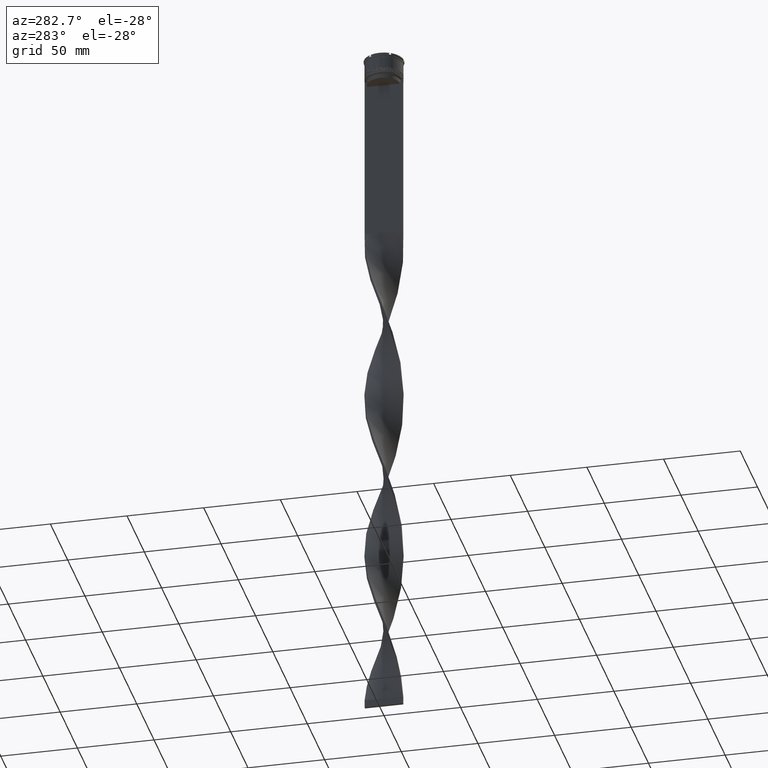
[diagram: clean part render]
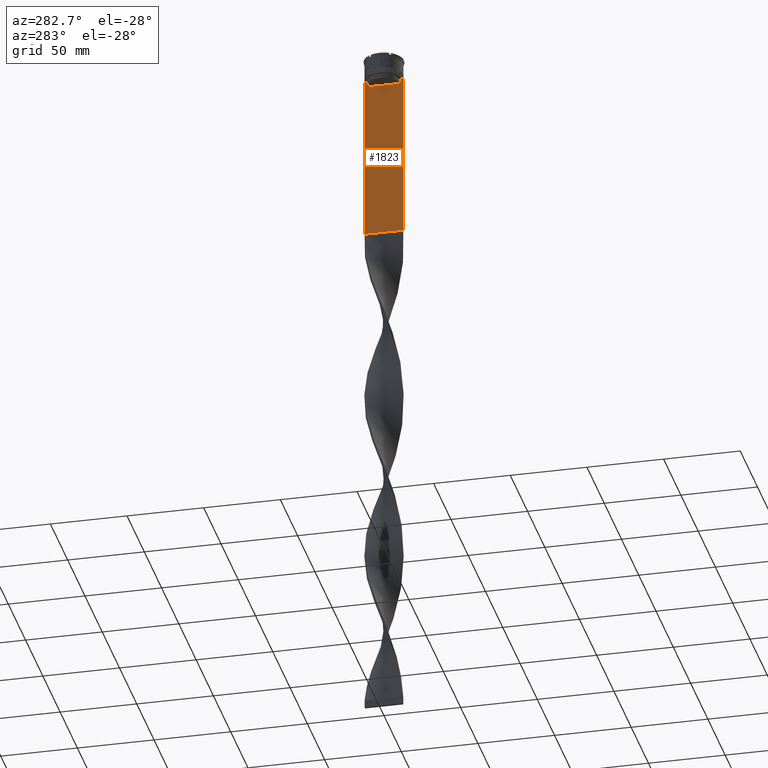
[diagram: same view with one face highlighted and labeled with its STEP entity id]
A machine part, auxiliary view. The second image highlights one B-rep face of the part: STEP entity #1823.
In plain terms, the highlighted planar face has unit normal (-1, 0, 0).
Its self-contained STEP definition (entity closure, byte-faithful):
#14 = CARTESIAN_POINT ( 'NONE',  ( -0.7499999999999997780, 11.04122051153452055, -14.33334204648729582 ) ) ;
#53 = DIRECTION ( 'NONE',  ( 0.000000000000000000, 0.000000000000000000, -1.000000000000000000 ) ) ;
#119 = CARTESIAN_POINT ( 'NONE',  ( -0.7499999999999997780, -11.37530219378809093, -14.00000000000000178 ) ) ;
#144 = PLANE ( 'NONE',  #4555 ) ;
#151 = DIRECTION ( 'NONE',  ( 0.000000000000000000, 0.000000000000000000, -1.000000000000000000 ) ) ;
#157 = ORIENTED_EDGE ( 'NONE', *, *, #1372, .F. ) ;
#172 = CARTESIAN_POINT ( 'NONE',  ( -0.7499999999999997780, 10.87416663473574374, 0.000000000000000000 ) ) ;
#187 = VERTEX_POINT ( 'NONE', #1264 ) ;
#191 = LINE ( 'NONE', #1275, #3712 ) ;
#206 = DIRECTION ( 'NONE',  ( 0.000000000000000000, 1.000000000000000000, 0.000000000000000000 ) ) ;
#270 = CARTESIAN_POINT ( 'NONE',  ( -0.7499999999999997780, 11.37530219378809093, -14.00000000000000178 ) ) ;
#320 = DIRECTION ( 'NONE',  ( 0.000000000000000000, 0.000000000000000000, -1.000000000000000000 ) ) ;
#354 = VECTOR ( 'NONE', #4526, 1000.000000000000000 ) ;
#362 = CARTESIAN_POINT ( 'NONE',  ( -0.7499999999999997780, -12.50000000000000000, -14.00000000000000178 ) ) ;
#371 = CARTESIAN_POINT ( 'NONE',  ( -0.7499999999999997780, 11.37530219378809093, -14.00000000000000178 ) ) ;
#408 = ORIENTED_EDGE ( 'NONE', *, *, #2575, .T. ) ;
#428 = VECTOR ( 'NONE', #3726, 1000.000000000000000 ) ;
#435 = VECTOR ( 'NONE', #320, 1000.000000000000000 ) ;
#476 = VERTEX_POINT ( 'NONE', #2940 ) ;
#517 = LINE ( 'NONE', #3992, #4251 ) ;
#528 = DIRECTION ( 'NONE',  ( 0.000000000000000000, -1.000000000000000000, 0.000000000000000000 ) ) ;
#564 = VECTOR ( 'NONE', #528, 1000.000000000000000 ) ;
#620 = CARTESIAN_POINT ( 'NONE',  ( -0.7499999999999997780, -12.37729776647553059, -14.00000000000000178 ) ) ;
#638 = EDGE_CURVE ( 'NONE', #1933, #2484, #978, .T. ) ;
#640 = CARTESIAN_POINT ( 'NONE',  ( -0.7499999999999997780, -11.37530219378809093, -14.00000000000000178 ) ) ;
#644 = CARTESIAN_POINT ( 'NONE',  ( -0.7499999999999997780, 12.50000000000000000, -123.0000000000000000 ) ) ;
#676 = CARTESIAN_POINT ( 'NONE',  ( -0.7499999999999997780, -12.50000000000000000, 11.04495957273638673 ) ) ;
#758 = LINE ( 'NONE', #775, #3499 ) ;
#775 = CARTESIAN_POINT ( 'NONE',  ( -0.7499999999999997780, 12.50000000000000000, 11.04495957273638673 ) ) ;
#857 = ORIENTED_EDGE ( 'NONE', *, *, #3722, .F. ) ;
#907 = VERTEX_POINT ( 'NONE', #4550 ) ;
#978 = LINE ( 'NONE', #2411, #564 ) ;
#1003 = CARTESIAN_POINT ( 'NONE',  ( -0.7499999999999997780, -12.50000000000000000, -123.0000000000000000 ) ) ;
#1014 = B_SPLINE_CURVE_WITH_KNOTS ( 'NONE', 3,
 ( #371, #3222, #14, #1447 ),
 .UNSPECIFIED., .F., .F.,
 ( 4, 4 ),
 ( 0.01936090553552769281, 0.02006881572333104116 ),
 .UNSPECIFIED. ) ;
#1123 = DIRECTION ( 'NONE',  ( -1.000000000000000000, 0.000000000000000000, 0.000000000000000000 ) ) ;
#1167 = VECTOR ( 'NONE', #2660, 1000.000000000000000 ) ;
#1220 = EDGE_CURVE ( 'NONE', #187, #4585, #4224, .T. ) ;
#1246 = DIRECTION ( 'NONE',  ( 0.000000000000000000, -1.000000000000000000, 0.000000000000000000 ) ) ;
#1260 = VERTEX_POINT ( 'NONE', #3724 ) ;
#1264 = CARTESIAN_POINT ( 'NONE',  ( -0.7499999999999997780, -12.50000000000000000, -123.0000000000000000 ) ) ;
#1275 = CARTESIAN_POINT ( 'NONE',  ( -0.7499999999999997780, -12.50000000000000000, -14.00000000000000178 ) ) ;
#1372 = EDGE_CURVE ( 'NONE', #2186, #2410, #191, .T. ) ;
#1447 = CARTESIAN_POINT ( 'NONE',  ( -0.7499999999999997780, 10.87416663473574374, -14.50000000000000000 ) ) ;
#1493 = ORIENTED_EDGE ( 'NONE', *, *, #3850, .F. ) ;
#1510 = VERTEX_POINT ( 'NONE', #3952 ) ;
#1567 = FACE_OUTER_BOUND ( 'NONE', #4513, .T. ) ;
#1662 = EDGE_CURVE ( 'NONE', #1260, #1510, #517, .T. ) ;
#1675 = LINE ( 'NONE', #2390, #354 ) ;
#1725 = EDGE_CURVE ( 'NONE', #476, #3541, #1983, .T. ) ;
#1753 = ORIENTED_EDGE ( 'NONE', *, *, #1662, .F. ) ;
#1767 = VERTEX_POINT ( 'NONE', #3679 ) ;
#1823 = ADVANCED_FACE ( 'NONE', ( #1567 ), #144, .T. ) ;
#1891 = DIRECTION ( 'NONE',  ( 0.000000000000000000, 0.000000000000000000, 1.000000000000000000 ) ) ;
#1933 = VERTEX_POINT ( 'NONE', #620 ) ;
#1944 = DIRECTION ( 'NONE',  ( 0.000000000000000000, -1.000000000000000000, 0.000000000000000000 ) ) ;
#1983 = B_SPLINE_CURVE_WITH_KNOTS ( 'NONE', 3,
 ( #2612, #3303, #3321, #119 ),
 .UNSPECIFIED., .F., .F.,
 ( 4, 4 ),
 ( 0.05009718908159448147, 0.05081156920313960323 ),
 .UNSPECIFIED. ) ;
#2054 = LINE ( 'NONE', #172, #4256 ) ;
#2149 = EDGE_CURVE ( 'NONE', #907, #2186, #3004, .T. ) ;
#2186 = VERTEX_POINT ( 'NONE', #3740 ) ;
#2390 = CARTESIAN_POINT ( 'NONE',  ( -0.7499999999999997780, -12.50000000000000000, -14.00000000000000178 ) ) ;
#2410 = VERTEX_POINT ( 'NONE', #270 ) ;
#2411 = CARTESIAN_POINT ( 'NONE',  ( -0.7499999999999997780, -12.50000000000000000, -14.00000000000000178 ) ) ;
#2484 = VERTEX_POINT ( 'NONE', #362 ) ;
#2575 = EDGE_CURVE ( 'NONE', #907, #4585, #758, .T. ) ;
#2612 = CARTESIAN_POINT ( 'NONE',  ( -0.7499999999999997780, -10.87416663473574374, -14.50000000000000000 ) ) ;
#2660 = DIRECTION ( 'NONE',  ( 0.000000000000000000, -1.000000000000000000, 0.000000000000000000 ) ) ;
#2812 = ORIENTED_EDGE ( 'NONE', *, *, #4533, .F. ) ;
#2940 = CARTESIAN_POINT ( 'NONE',  ( -0.7499999999999997780, -10.87416663473574374, -14.50000000000000000 ) ) ;
#2948 = EDGE_CURVE ( 'NONE', #1510, #476, #3347, .T. ) ;
#2992 = ORIENTED_EDGE ( 'NONE', *, *, #1220, .F. ) ;
#3004 = LINE ( 'NONE', #3330, #1167 ) ;
#3088 = ORIENTED_EDGE ( 'NONE', *, *, #4510, .F. ) ;
#3167 = ORIENTED_EDGE ( 'NONE', *, *, #638, .F. ) ;
#3184 = VECTOR ( 'NONE', #206, 1000.000000000000000 ) ;
#3222 = CARTESIAN_POINT ( 'NONE',  ( -0.7499999999999997780, 11.20826531587977648, -14.16667499681701514 ) ) ;
#3303 = CARTESIAN_POINT ( 'NONE',  ( -0.7499999999999997780, -11.04122051801870619, -14.33334204001847745 ) ) ;
#3321 = CARTESIAN_POINT ( 'NONE',  ( -0.7499999999999997780, -11.20826532207830439, -14.16667499063191471 ) ) ;
#3330 = CARTESIAN_POINT ( 'NONE',  ( -0.7499999999999997780, -12.50000000000000000, -14.00000000000000178 ) ) ;
#3347 = LINE ( 'NONE', #4344, #428 ) ;
#3422 = ORIENTED_EDGE ( 'NONE', *, *, #2149, .F. ) ;
#3499 = VECTOR ( 'NONE', #53, 1000.000000000000000 ) ;
#3541 = VERTEX_POINT ( 'NONE', #640 ) ;
#3679 = CARTESIAN_POINT ( 'NONE',  ( -0.7499999999999997780, 10.87416663473574374, -14.50000000000000000 ) ) ;
#3712 = VECTOR ( 'NONE', #1246, 1000.000000000000000 ) ;
#3722 = EDGE_CURVE ( 'NONE', #2410, #1767, #1014, .T. ) ;
#3724 = CARTESIAN_POINT ( 'NONE',  ( -0.7499999999999997780, 10.87416663473574019, -17.00000000000000000 ) ) ;
#3726 = DIRECTION ( 'NONE',  ( -0.000000000000000000, -0.000000000000000000, 1.000000000000000000 ) ) ;
#3740 = CARTESIAN_POINT ( 'NONE',  ( -0.7499999999999997780, 12.37729776647553059, -14.00000000000000178 ) ) ;
#3850 = EDGE_CURVE ( 'NONE', #2484, #187, #4287, .T. ) ;
#3952 = CARTESIAN_POINT ( 'NONE',  ( -0.7499999999999997780, -10.87416663473574019, -17.00000000000000000 ) ) ;
#3984 = ORIENTED_EDGE ( 'NONE', *, *, #2948, .F. ) ;
#3992 = CARTESIAN_POINT ( 'NONE',  ( -0.7499999999999997780, 10.90000000000000213, -17.00000000000000000 ) ) ;
#4224 = LINE ( 'NONE', #1003, #3184 ) ;
#4251 = VECTOR ( 'NONE', #1944, 1000.000000000000000 ) ;
#4256 = VECTOR ( 'NONE', #151, 1000.000000000000000 ) ;
#4287 = LINE ( 'NONE', #676, #435 ) ;
#4344 = CARTESIAN_POINT ( 'NONE',  ( -0.7499999999999997780, -10.87416663473574374, 0.000000000000000000 ) ) ;
#4349 = CARTESIAN_POINT ( 'NONE',  ( -0.7499999999999997780, -12.50000000000000000, 11.04495957273638673 ) ) ;
#4510 = EDGE_CURVE ( 'NONE', #3541, #1933, #1675, .T. ) ;
#4513 = EDGE_LOOP ( 'NONE', ( #857, #157, #3422, #408, #2992, #1493, #3167, #3088, #4626, #3984, #1753, #2812 ) ) ;
#4526 = DIRECTION ( 'NONE',  ( 0.000000000000000000, -1.000000000000000000, 0.000000000000000000 ) ) ;
#4533 = EDGE_CURVE ( 'NONE', #1767, #1260, #2054, .T. ) ;
#4550 = CARTESIAN_POINT ( 'NONE',  ( -0.7499999999999997780, 12.50000000000000000, -14.00000000000000178 ) ) ;
#4555 = AXIS2_PLACEMENT_3D ( 'NONE', #4349, #1123, #1891 ) ;
#4585 = VERTEX_POINT ( 'NONE', #644 ) ;
#4626 = ORIENTED_EDGE ( 'NONE', *, *, #1725, .F. ) ;